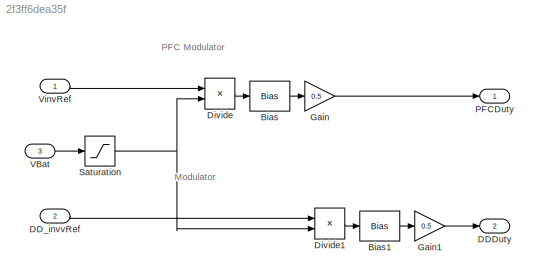
MODEL slx_2f3ff6dea35f
KIND model
CONFIG AbsTol = 1e-3
CONFIG EnableMultiTasking = off
CONFIG FixedStep = 0.0001
CONFIG MaxStep = 1e-5
CONFIG MinStep = auto
CONFIG RelTol = 1e-3
CONFIG SampleTimeConstraint = Unconstrained
CONFIG SolverName = FixedStepAuto
CONFIG StartTime = 0.0
CONFIG StopTime = 20
BLOCK [Bias] Bias
  Bias = 1
  SaturateOnIntegerOverflow = off
BLOCK [Bias] Bias1
  Bias = 1
  SaturateOnIntegerOverflow = off
BLOCK [Outport] DDDuty
  OutDataTypeStr = double
  Port = 2
  PortDimensions = 1
  SampleTime = [0.0001,0]
  SamplingMode = Sample based
  SignalType = real
BLOCK [Inport] DD_invvRef
  OutDataTypeStr = double
  Port = 2
  PortDimensions = 1
  SampleTime = [0.0001,0]
  SamplingMode = Sample based
  SignalType = real
BLOCK [Product] Divide
  Inputs = */
BLOCK [Product] Divide1
  Inputs = */
BLOCK [Gain] Gain
  Gain = 0.5
BLOCK [Gain] Gain1
  Gain = 0.5
BLOCK [Outport] PFCDuty
  OutDataTypeStr = double
  PortDimensions = 1
  SampleTime = [0.0001,0]
  SamplingMode = Sample based
  SignalType = real
BLOCK [Saturate] Saturation
  LowerLimit = 10
  UpperLimit = inf
BLOCK [Inport] VBat
  Port = 3
BLOCK [Inport] VinvRef
  OutDataTypeStr = double
  PortDimensions = 1
  SampleTime = [0.0001,0]
  SamplingMode = Sample based
  SignalType = real
ANNOTATION (root): Modulator
ANNOTATION (root): PFC Modulator
LINE Bias1:1 -> Gain1:1
LINE Bias:1 -> Gain:1
LINE DD_invvRef:1 -> Divide1:1
LINE Divide1:1 -> Bias1:1
LINE Divide:1 -> Bias:1
LINE Gain1:1 -> DDDuty:1
LINE Gain:1 -> PFCDuty:1
NET Saturation:1 -> Divide1:2, Divide:2
LINE VBat:1 -> Saturation:1
LINE VinvRef:1 -> Divide:1
note: NET lines group one-source signal fan-out (src -> all destinations, sorted); 1:1 wires keep LINE
